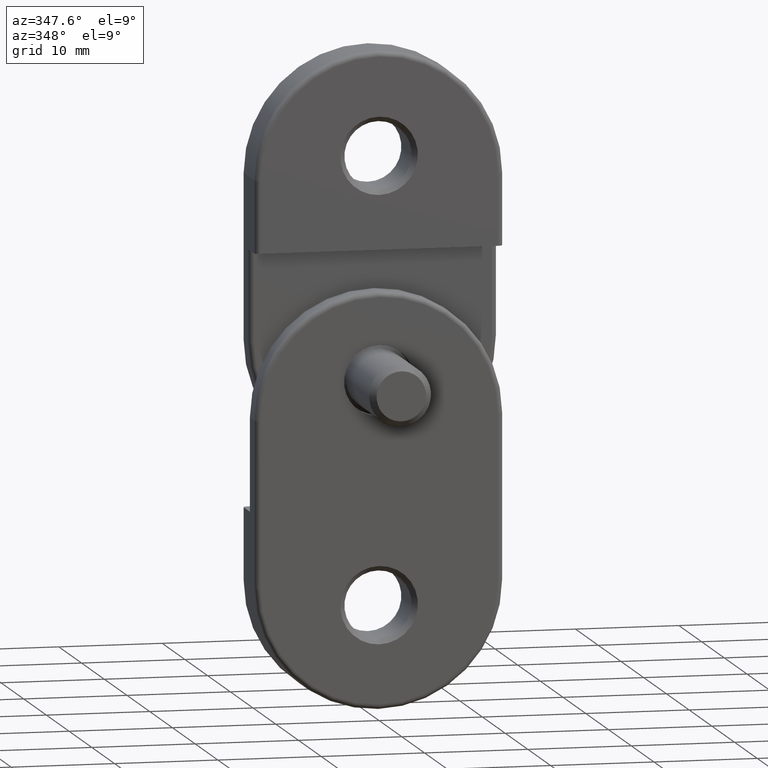
[diagram: clean part render]
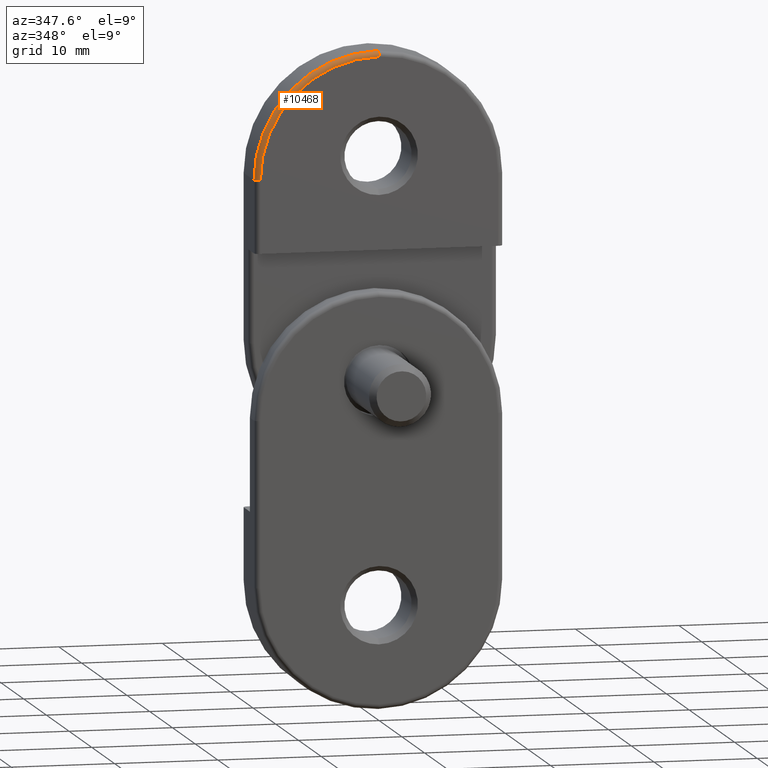
[diagram: same view with one face highlighted and labeled with its STEP entity id]
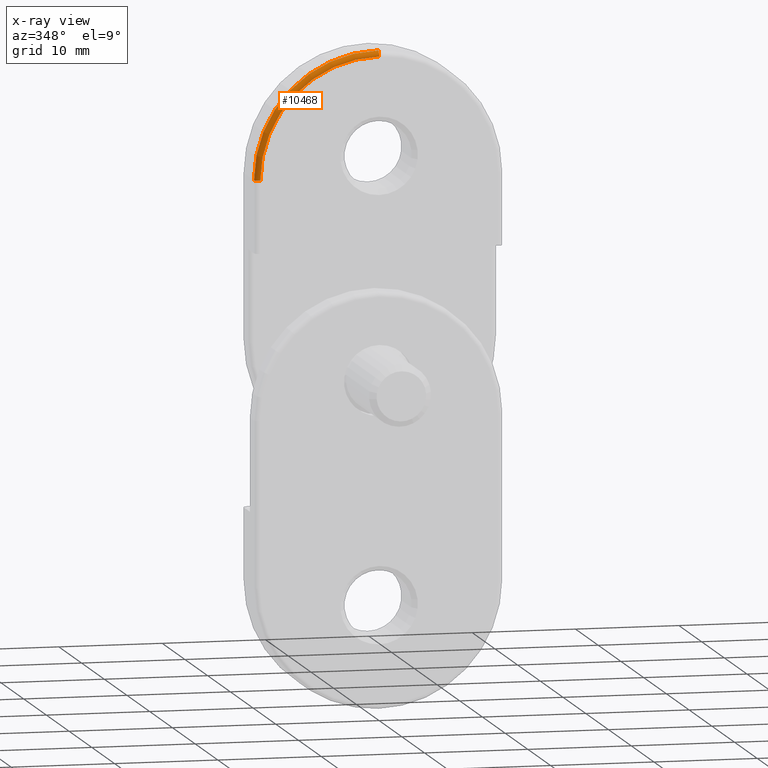
[diagram: x-ray of the same camera — body ghosted, the highlighted face saturated]
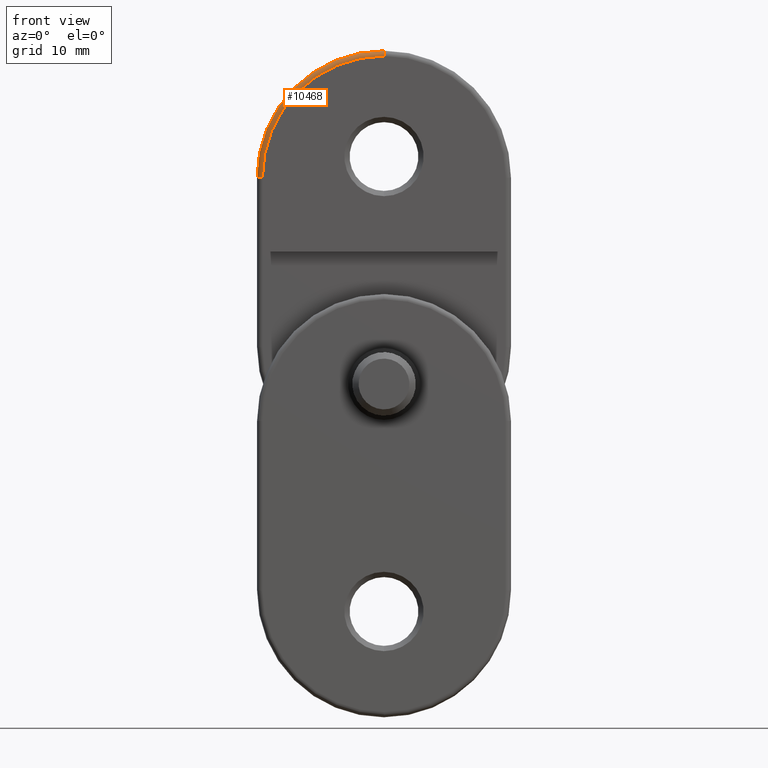
[diagram: same view with one face highlighted and labeled with its STEP entity id]
A machine part, auxiliary view. The second image highlights one B-rep face of the part: STEP entity #10468.
The next image is the same camera in x-ray: the body ghosted, the highlighted face saturated — about 0% of this face is hidden behind the body in this view.
A second angle (front view) of the same face is appended — the face is thin or edge-on in the first view.
In plain terms, the highlighted toroidal blend (fillet) surface has major radius 11.5 mm and minor (blend) radius 0.5 mm.
Its self-contained STEP definition (entity closure, byte-faithful):
#1641 = EDGE_CURVE ( 'NONE', #4734, #14952, #10193, .T. ) ;
#1807 = ORIENTED_EDGE ( 'NONE', *, *, #12290, .T. ) ;
#2096 = ORIENTED_EDGE ( 'NONE', *, *, #14842, .F. ) ;
#2850 = DIRECTION ( 'NONE',  ( 1.000000000000000000, 0.000000000000000000, -0.000000000000000000 ) ) ;
#3604 = DIRECTION ( 'NONE',  ( 0.000000000000000000, 0.000000000000000000, 1.000000000000000000 ) ) ;
#3630 = CARTESIAN_POINT ( 'NONE',  ( 0.000000000000000000, 0.5000000000000000000, 6.999999999999999112 ) ) ;
#3891 = DIRECTION ( 'NONE',  ( 0.000000000000000000, 0.000000000000000000, 1.000000000000000000 ) ) ;
#4734 = VERTEX_POINT ( 'NONE', #11296 ) ;
#5998 = DIRECTION ( 'NONE',  ( 0.000000000000000000, 0.000000000000000000, 1.000000000000000000 ) ) ;
#6073 = EDGE_CURVE ( 'NONE', #12438, #8715, #6387, .T. ) ;
#6225 = DIRECTION ( 'NONE',  ( 1.000000000000000000, 0.000000000000000000, 0.000000000000000000 ) ) ;
#6387 = CIRCLE ( 'NONE', #15212, 12.00000000000000000 ) ;
#7667 = AXIS2_PLACEMENT_3D ( 'NONE', #3630, #13305, #9737 ) ;
#7801 = TOROIDAL_SURFACE ( 'NONE', #7667, 11.50000000000000000, 0.5000000000000000000 ) ;
#7970 = ORIENTED_EDGE ( 'NONE', *, *, #6073, .F. ) ;
#7988 = FACE_OUTER_BOUND ( 'NONE', #8514, .T. ) ;
#8514 = EDGE_LOOP ( 'NONE', ( #1807, #14000, #2096, #7970 ) ) ;
#8715 = VERTEX_POINT ( 'NONE', #13855 ) ;
#8892 = AXIS2_PLACEMENT_3D ( 'NONE', #10078, #2850, #11292 ) ;
#9051 = CIRCLE ( 'NONE', #10940, 0.5000000000000004441 ) ;
#9737 = DIRECTION ( 'NONE',  ( 0.000000000000000000, 0.000000000000000000, 1.000000000000000000 ) ) ;
#10078 = CARTESIAN_POINT ( 'NONE',  ( 0.000000000000000000, 0.5000000000000000000, 18.50000000000000355 ) ) ;
#10193 = CIRCLE ( 'NONE', #12324, 11.50000000000000000 ) ;
#10468 = ADVANCED_FACE ( 'NONE', ( #7988 ), #7801, .T. ) ;
#10734 = DIRECTION ( 'NONE',  ( -0.000000000000000000, -1.000000000000000000, -0.000000000000000000 ) ) ;
#10940 = AXIS2_PLACEMENT_3D ( 'NONE', #13309, #3891, #6225 ) ;
#11292 = DIRECTION ( 'NONE',  ( 0.000000000000000000, 0.000000000000000000, -1.000000000000000000 ) ) ;
#11296 = CARTESIAN_POINT ( 'NONE',  ( 0.000000000000000000, 0.000000000000000000, 18.50000000000000355 ) ) ;
#11443 = CARTESIAN_POINT ( 'NONE',  ( -11.50000000000000000, 0.000000000000000000, 6.999999999999999112 ) ) ;
#11895 = CARTESIAN_POINT ( 'NONE',  ( 0.000000000000000000, 0.000000000000000000, 6.999999999999999112 ) ) ;
#12290 = EDGE_CURVE ( 'NONE', #12438, #14952, #9051, .T. ) ;
#12324 = AXIS2_PLACEMENT_3D ( 'NONE', #11895, #10734, #5998 ) ;
#12377 = CARTESIAN_POINT ( 'NONE',  ( -12.00000000000000000, 0.5000000000000004441, 6.999999999999999112 ) ) ;
#12438 = VERTEX_POINT ( 'NONE', #12377 ) ;
#13158 = CARTESIAN_POINT ( 'NONE',  ( 0.000000000000000000, 0.5000000000000000000, 6.999999999999999112 ) ) ;
#13305 = DIRECTION ( 'NONE',  ( 0.000000000000000000, 1.000000000000000000, 0.000000000000000000 ) ) ;
#13309 = CARTESIAN_POINT ( 'NONE',  ( -11.50000000000000000, 0.5000000000000000000, 6.999999999999999112 ) ) ;
#13426 = CIRCLE ( 'NONE', #8892, 0.5000000000000004441 ) ;
#13855 = CARTESIAN_POINT ( 'NONE',  ( 0.000000000000000000, 0.5000000000000004441, 19.00000000000000355 ) ) ;
#14000 = ORIENTED_EDGE ( 'NONE', *, *, #1641, .F. ) ;
#14383 = DIRECTION ( 'NONE',  ( 0.000000000000000000, 1.000000000000000000, 0.000000000000000000 ) ) ;
#14842 = EDGE_CURVE ( 'NONE', #8715, #4734, #13426, .T. ) ;
#14952 = VERTEX_POINT ( 'NONE', #11443 ) ;
#15212 = AXIS2_PLACEMENT_3D ( 'NONE', #13158, #14383, #3604 ) ;